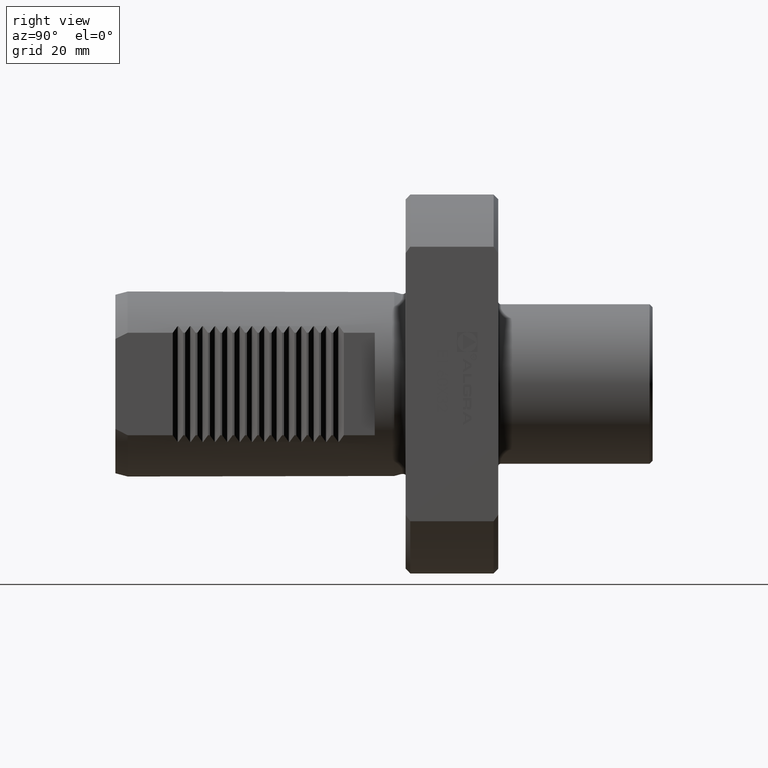
[diagram: clean part render]
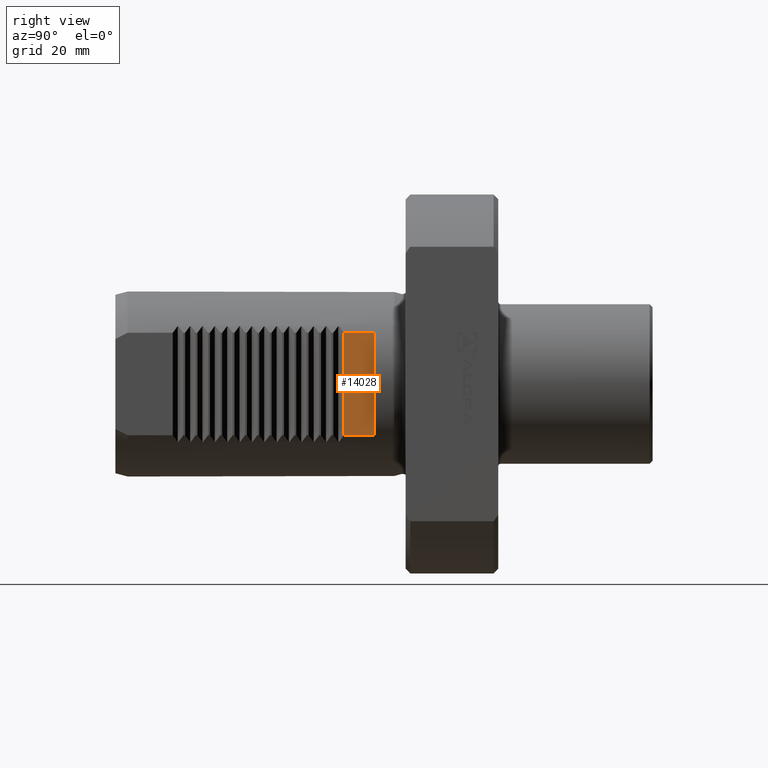
[diagram: same view with one face highlighted and labeled with its STEP entity id]
A machine part, right view. The second image highlights one B-rep face of the part: STEP entity #14028.
In plain terms, the highlighted planar face has unit normal (1, -0, 0).
Its self-contained STEP definition (entity closure, byte-faithful):
#754 = DIRECTION ( 'NONE',  ( -0.000000000000000000, -0.000000000000000000, -1.000000000000000000 ) ) ;
#854 = PLANE ( 'NONE',  #2830 ) ;
#884 = VECTOR ( 'NONE', #754, 1000.000000000000000 ) ;
#2121 = VECTOR ( 'NONE', #2365, 1000.000000000000000 ) ;
#2365 = DIRECTION ( 'NONE',  ( -0.000000000000000000, -0.000000000000000000, -1.000000000000000000 ) ) ;
#2500 = DIRECTION ( 'NONE',  ( 1.295371175675670281E-16, -1.000000000000000000, 0.000000000000000000 ) ) ;
#2830 = AXIS2_PLACEMENT_3D ( 'NONE', #6614, #8732, #12298 ) ;
#3393 = LINE ( 'NONE', #10034, #2121 ) ;
#3636 = LINE ( 'NONE', #6085, #10693 ) ;
#3997 = CARTESIAN_POINT ( 'NONE',  ( 25.00000000000001066, -9.999999999999987566, -16.58312395177697596 ) ) ;
#4279 = FACE_OUTER_BOUND ( 'NONE', #7520, .T. ) ;
#4493 = CARTESIAN_POINT ( 'NONE',  ( 25.00000000000000711, -20.00000000000014921, 16.58312395177699372 ) ) ;
#5170 = CARTESIAN_POINT ( 'NONE',  ( 25.00000000000000711, -20.00000000000014921, 34.00000000000000711 ) ) ;
#6085 = CARTESIAN_POINT ( 'NONE',  ( 25.00000000000001421, -8.673617379883899788E-15, 16.58312395177697596 ) ) ;
#6614 = CARTESIAN_POINT ( 'NONE',  ( 25.00000000000001421, -8.673617379883899788E-15, 34.00000000000000711 ) ) ;
#6817 = ORIENTED_EDGE ( 'NONE', *, *, #10967, .F. ) ;
#6969 = VERTEX_POINT ( 'NONE', #3997 ) ;
#7251 = EDGE_CURVE ( 'NONE', #10339, #6969, #3393, .T. ) ;
#7520 = EDGE_LOOP ( 'NONE', ( #8528, #9254, #7922, #6817 ) ) ;
#7719 = VERTEX_POINT ( 'NONE', #4493 ) ;
#7869 = LINE ( 'NONE', #12393, #8281 ) ;
#7922 = ORIENTED_EDGE ( 'NONE', *, *, #12499, .T. ) ;
#8281 = VECTOR ( 'NONE', #2500, 1000.000000000000000 ) ;
#8528 = ORIENTED_EDGE ( 'NONE', *, *, #7251, .F. ) ;
#8732 = DIRECTION ( 'NONE',  ( 1.000000000000000000, -3.469446951953557982E-16, 0.000000000000000000 ) ) ;
#8979 = CARTESIAN_POINT ( 'NONE',  ( 25.00000000000001066, -9.999999999999987566, 16.58312395177697596 ) ) ;
#9254 = ORIENTED_EDGE ( 'NONE', *, *, #11582, .F. ) ;
#10034 = CARTESIAN_POINT ( 'NONE',  ( 25.00000000000001066, -9.999999999999987566, 34.00000000000000711 ) ) ;
#10257 = CARTESIAN_POINT ( 'NONE',  ( 25.00000000000000711, -20.00000000000014921, -16.58312395177699727 ) ) ;
#10339 = VERTEX_POINT ( 'NONE', #8979 ) ;
#10592 = DIRECTION ( 'NONE',  ( -1.295371175675670281E-16, 1.000000000000000000, -0.000000000000000000 ) ) ;
#10693 = VECTOR ( 'NONE', #10592, 1000.000000000000000 ) ;
#10695 = VERTEX_POINT ( 'NONE', #10257 ) ;
#10967 = EDGE_CURVE ( 'NONE', #6969, #10695, #7869, .T. ) ;
#11582 = EDGE_CURVE ( 'NONE', #7719, #10339, #3636, .T. ) ;
#12298 = DIRECTION ( 'NONE',  ( 3.469446951953557982E-16, 1.000000000000000000, 0.000000000000000000 ) ) ;
#12393 = CARTESIAN_POINT ( 'NONE',  ( 25.00000000000001421, -8.673617379883899788E-15, -16.58312395177697596 ) ) ;
#12499 = EDGE_CURVE ( 'NONE', #7719, #10695, #12835, .T. ) ;
#12835 = LINE ( 'NONE', #5170, #884 ) ;
#14028 = ADVANCED_FACE ( 'Defeature completata1_23', ( #4279 ), #854, .T. ) ;